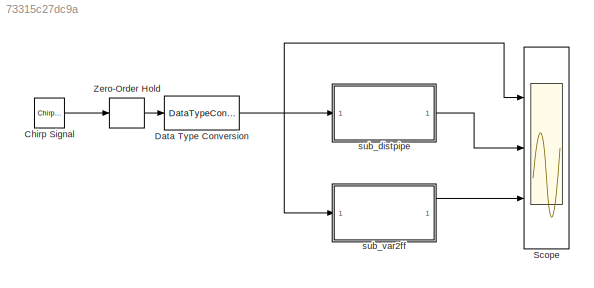
MODEL slx_73315c27dc9a
KIND model
CONFIG AbsTol = auto
CONFIG FixedStep = auto
CONFIG MaxStep = auto
CONFIG MinStep = auto
CONFIG RelTol = 1e-3
CONFIG SampleTimeConstraint = Unconstrained
CONFIG Solver = FixedStepDiscrete
CONFIG SolverMode = SingleTasking
CONFIG SolverName = FixedStepDiscrete
CONFIG StartTime = 0.0
CONFIG StopTime = 10
BLOCK [Reference] Chirp Signal  REF=simulink/Sources/Chirp Signal
  Ports = [0, 1]
  SourceBlock = simulink/Sources/Chirp Signal
  SourceType = chirp
BLOCK [DataTypeConversion] Data Type Conversion
  OutDataTypeStr = fixdt(1,16,14)
  RndMeth = Floor
  SaturateOnIntegerOverflow = off
BLOCK [Scope] Scope
  NumInputPorts = 3
  Ports = [3]
  ScopeSpecificationString = Simulink.scopes.TimeScopeBlockCfg('CurrentConfiguration', extmgr.ConfigurationSet(extmgr.Configuration('Core','General UI',true),extmgr.Configuration('Core','Source UI',true),extmgr.Configuration('Sources','WiredSimulink',true,'DataLoggingSaveFormat','StructureWithTime','DataLoggingDecimation','1','DataLoggingDecimateData',true),extmgr.Configuration('Visuals','Time Domain',true,'SerializedDisplays...<+3074ch>
BLOCK [ZeroOrderHold] Zero-Order Hold
  SampleTime = 1/1000
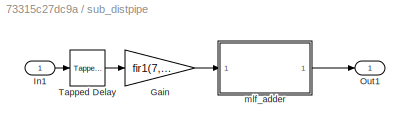
BLOCK [SubSystem] sub_distpipe
  Ports = [1, 1]
  RequestExecContextInheritance = off
  Variant = off
BLOCK [Gain] sub_distpipe/Gain
  Gain = fir1(7,0.2)
  ParamDataTypeStr = fixdt(1,16,16)
  SaturateOnIntegerOverflow = off
BLOCK [Inport] sub_distpipe/In1
  IconDisplay = Port number
BLOCK [Outport] sub_distpipe/Out1
  IconDisplay = Port number
BLOCK [Reference] sub_distpipe/Tapped Delay  REF=simulink/Discrete/Tapped Delay
  Ports = [1, 1]
  SourceBlock = simulink/Discrete/Tapped Delay
  SourceType = Tapped Delay Line
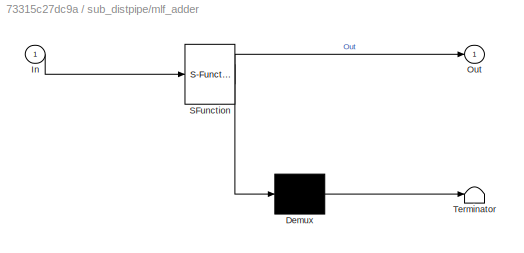
BLOCK [SubSystem] sub_distpipe/mlf_adder
  ErrorFcn = Stateflow.Translate.translate
  PermitHierarchicalResolution = ExplicitOnly
  Ports = [1, 1]
  RequestExecContextInheritance = off
  SFBlockType = MATLAB Function
  TreatAsAtomicUnit = on
  Variant = off
BLOCK [Demux] sub_distpipe/mlf_adder/ Demux 
  Outputs = 1
  Ports = [1, 1]
BLOCK [S-Function] sub_distpipe/mlf_adder/ SFunction 
  EnableBusSupport = on
  FunctionName = sf_sfun
  PortCounts = [1 2]
  Ports = [1, 2]
  SFunctionDeploymentMode = off
  Tag = Stateflow S-Function mlf_distpipe 1
BLOCK [Terminator] sub_distpipe/mlf_adder/ Terminator 
BLOCK [Inport] sub_distpipe/mlf_adder/In
  IconDisplay = Port number
BLOCK [Outport] sub_distpipe/mlf_adder/Out
  IconDisplay = Port number
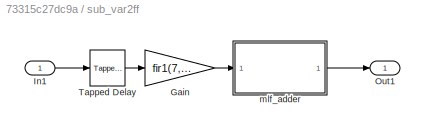
BLOCK [SubSystem] sub_var2ff
  Ports = [1, 1]
  RequestExecContextInheritance = off
  Variant = off
BLOCK [Gain] sub_var2ff/Gain
  Gain = fir1(7,0.2)
  ParamDataTypeStr = fixdt(1,16,16)
  SaturateOnIntegerOverflow = off
BLOCK [Inport] sub_var2ff/In1
  IconDisplay = Port number
BLOCK [Outport] sub_var2ff/Out1
  IconDisplay = Port number
BLOCK [Reference] sub_var2ff/Tapped Delay  REF=simulink/Discrete/Tapped Delay
  Ports = [1, 1]
  SourceBlock = simulink/Discrete/Tapped Delay
  SourceType = Tapped Delay Line
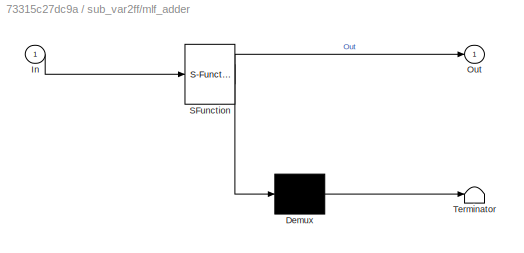
BLOCK [SubSystem] sub_var2ff/mlf_adder
  ErrorFcn = Stateflow.Translate.translate
  PermitHierarchicalResolution = ExplicitOnly
  Ports = [1, 1]
  RequestExecContextInheritance = off
  SFBlockType = MATLAB Function
  TreatAsAtomicUnit = on
  Variant = off
BLOCK [Demux] sub_var2ff/mlf_adder/ Demux 
  Outputs = 1
  Ports = [1, 1]
BLOCK [S-Function] sub_var2ff/mlf_adder/ SFunction 
  EnableBusSupport = on
  FunctionName = sf_sfun
  PortCounts = [1 2]
  Ports = [1, 2]
  SFunctionDeploymentMode = off
  Tag = Stateflow S-Function mlf_distpipe 2
BLOCK [Terminator] sub_var2ff/mlf_adder/ Terminator 
BLOCK [Inport] sub_var2ff/mlf_adder/In
  IconDisplay = Port number
BLOCK [Outport] sub_var2ff/mlf_adder/Out
  IconDisplay = Port number
LINE Chirp Signal:1 -> Zero-Order Hold:1
NET Data Type Conversion:1 -> Scope:1, sub_distpipe:1, sub_var2ff:1
LINE Zero-Order Hold:1 -> Data Type Conversion:1
LINE sub_distpipe/Gain:1 -> sub_distpipe/mlf_adder:1
LINE sub_distpipe/In1:1 -> sub_distpipe/Tapped Delay:1
LINE sub_distpipe/Tapped Delay:1 -> sub_distpipe/Gain:1
LINE sub_distpipe/mlf_adder:1 -> sub_distpipe/Out1:1
LINE sub_distpipe:1 -> Scope:2
LINE sub_var2ff/Gain:1 -> sub_var2ff/mlf_adder:1
LINE sub_var2ff/In1:1 -> sub_var2ff/Tapped Delay:1
LINE sub_var2ff/Tapped Delay:1 -> sub_var2ff/Gain:1
LINE sub_var2ff/mlf_adder:1 -> sub_var2ff/Out1:1
LINE sub_var2ff:1 -> Scope:3
note: NET lines group one-source signal fan-out (src -> all destinations, sorted); 1:1 wires keep LINE
CHART sub_distpipe/mlf_adder states=1 transitions=1
  STATE_LABEL 'eML_blk_kernel()'
  STATE_LABEL 'SCRIPT:\nfunction Out = fcn(In)\n\n\n% stage 0 to 1\ny1 = In(1)+In(2);\ny2 = In(3)+In(4);\ny3 = In(5)+In(6);\ny4 = In(7)+In(8);\n\n% stage 1 to 2\ny5 = y1+y2;\ny6 = y3+y4;\n\n% stage 2 to 3\nOut =fi(y5+y6, 1,16,14);\n'
CHART sub_var2ff/mlf_adder states=1 transitions=1
  STATE_LABEL 'eML_blk_kernel()'
  STATE_LABEL 'SCRIPT:\nfunction Out = fcn(In)\n\nbuf1 = fi(zeros(1,4), 1, 17, 14);\t% pre allocation\nbuf2 = fi(zeros(1,2), 1, 18, 14);  % pre allocation\n\n% stage 0 to 1\nbuf1(1) = In(1)+In(2);\nbuf1(2) = In(3)+In(4);\nbuf1(3) = In(5)+In(6);\nbuf1(4) = In(7)+In(8);\n\n% stage 1 to 2\nbuf2(1) = buf1(1)+buf1(2);\nbuf2(2) = buf1(3)+buf1(4);\n\n% stage 2 to 3\nOut =fi(sum(buf2), 1,16,14);\n'
